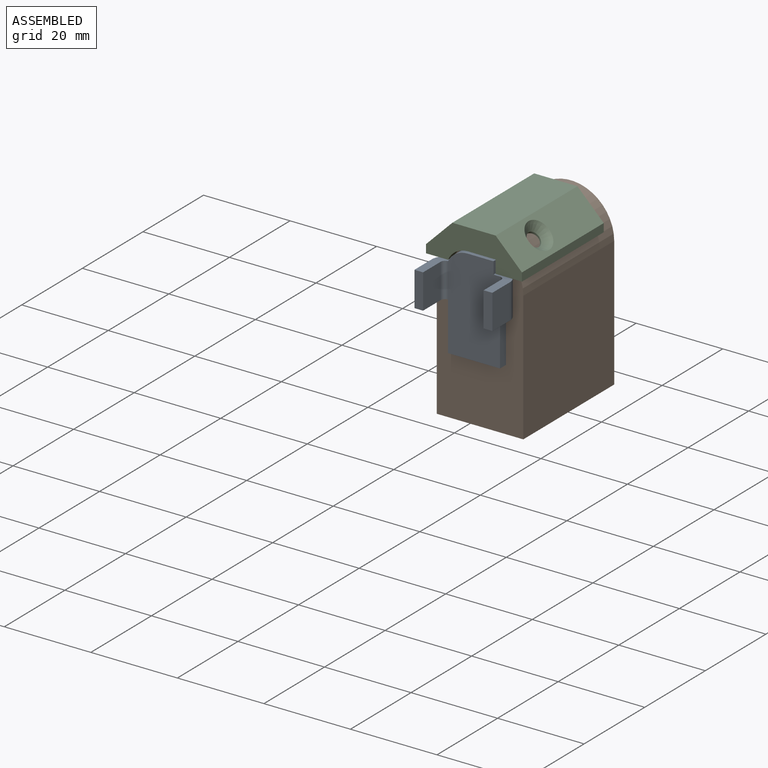
[diagram: assembled view]
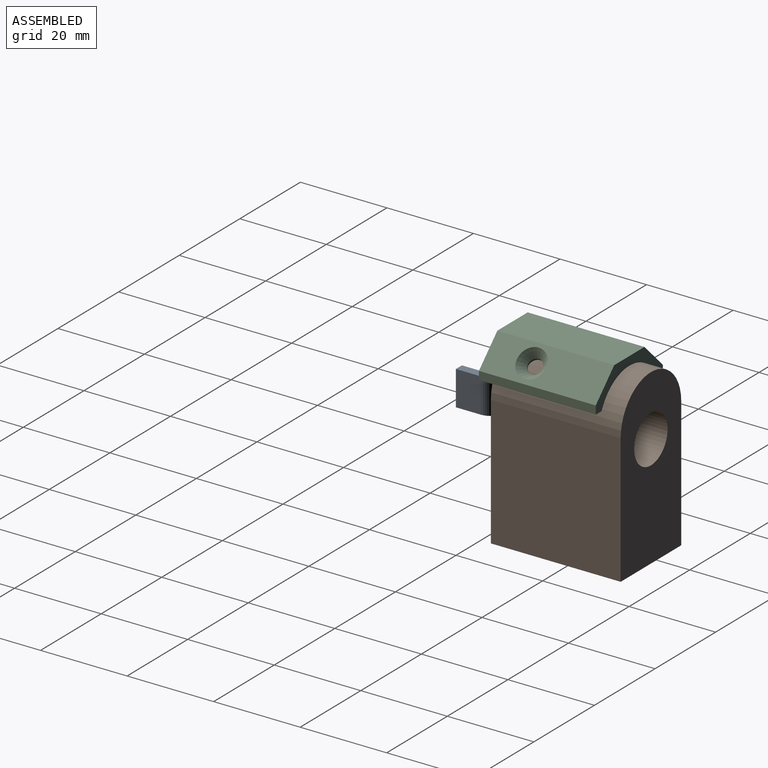
[diagram: assembled view, second angle]
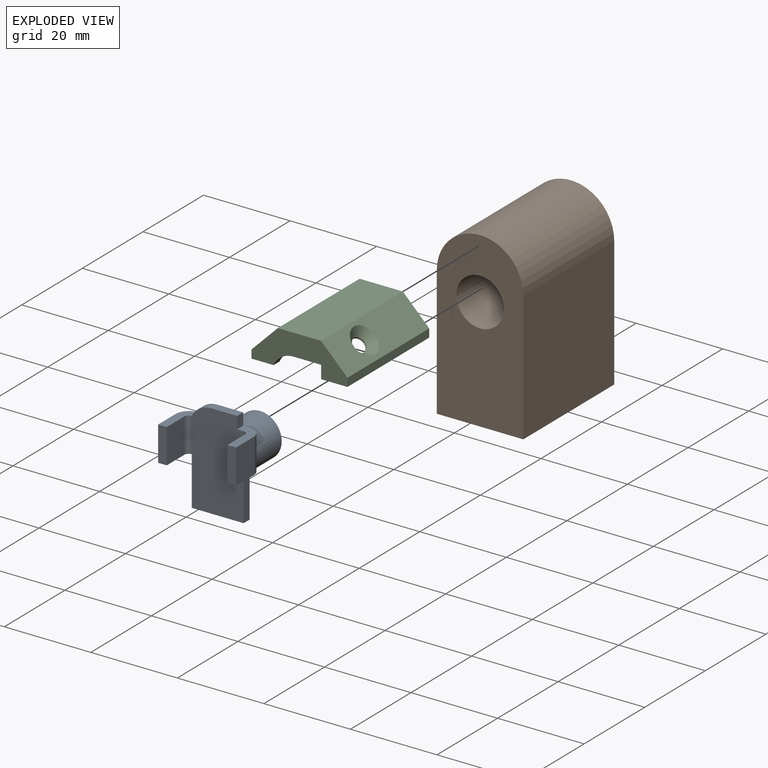
[diagram: exploded view]
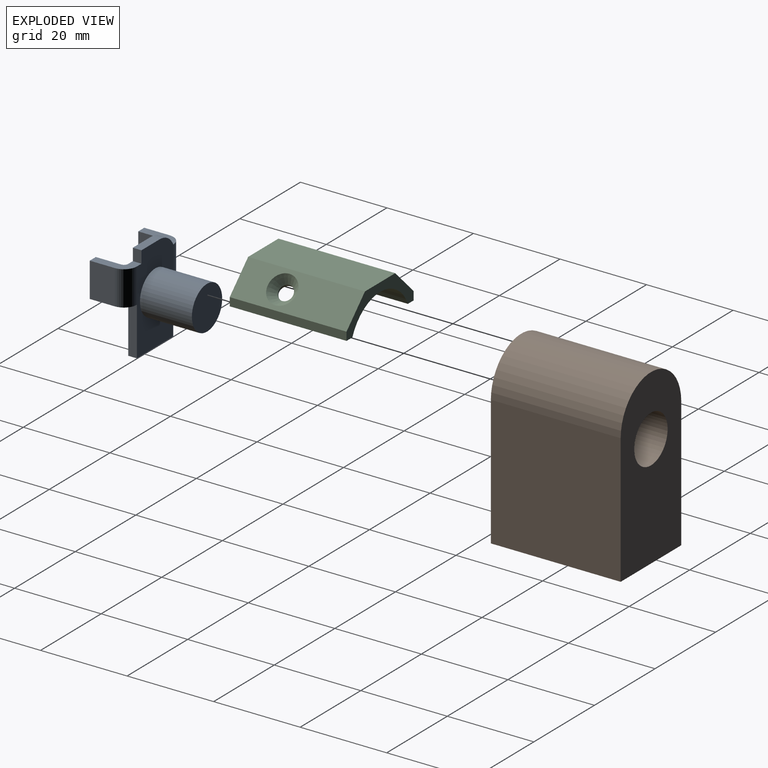
[diagram: exploded view, second angle]
ASSEMBLY  parts=3 mates=2
PART A: 24 faces, bbox 18x20.8x22 mm
  f0: plane 22x12mm, normal (0,-1,0), area 177.7mm2, adj f2,f6,f7,f10,f11,f16,f18,f19
  f1: plane 22x12mm, normal (0,1,0), area 256.2mm2, adj f2,f6,f7,f10,f11,f18,f19,f22
  f2: plane 11.2x2mm, normal (1,0,0), area 22.4mm2, adj f0,f1,f3,f11
  f3: plane 8.8x3mm, normal (0,0,-1), area 17.9mm2, adj f2,f4,f12,f13,f21,f23
  f4: plane 8x5.8mm, normal (1,0,0), area 46.4mm2, adj f3,f5,f13,f21
  f5: plane 8.8x3mm, normal (0,0,1), area 17.9mm2, adj f4,f12,f13,f19,f21,f23
  f6: plane 6.01x2mm, normal (0,0,1), area 12mm2, adj f0,f1,f18,f19
  f7: plane 8.8x4.5mm, normal (0,0,1), area 20.9mm2, adj f0,f1,f8,f14,f15,f18,f20,f22
  f8: plane 8x5.8mm, normal (-1,0,0), area 46.4mm2, adj f7,f9,f15,f20
  f9: plane 8.8x3mm, normal (0,0,-1), area 17.9mm2, adj f8,f10,f14,f15,f20,f22
  f10: plane 11.2x2mm, normal (-1,0,0), area 22.4mm2, adj f0,f1,f9,f11
  f11: plane 12x2mm, normal (0,0,-1), area 24mm2, adj f0,f1,f2,f10
  f12: plane 8x5.8mm, normal (-1,0,0), area 46.4mm2, adj f3,f5,f13,f23
  f13: plane 8x2mm, normal (0,1,0), area 16mm2, adj f3,f4,f5,f12
  f14: plane 8x5.8mm, normal (1,0,0), area 46.4mm2, adj f7,f9,f15,f22
  f15: plane 8x2mm, normal (0,1,0), area 16mm2, adj f7,f8,f9,f14
  f16: cylinder r=5mm len=12mm, axis (0,1,0), area 377mm2, adj f0,f17
  f17: plane 10x10mm, normal (0,-1,0), area 78.5mm2, adj f16
  f18: plane 2.8x2mm, normal (-1,0,0), area 5.6mm2, adj f0,f1,f6,f7
  f19: cylinder r=5mm len=4.49mm, axis (0,-1,0), area 11.2mm2, adj f0,f1,f5,f6
  f20: cylinder r=3mm len=8mm, axis (0,0,1), area 37.7mm2, adj f0,f7,f8,f9
  f21: cylinder r=3mm len=8mm, axis (0,0,-1), area 37.7mm2, adj f0,f3,f4,f5
  f22: cylinder r=1mm len=8mm, axis (0,0,1), area 12.6mm2, adj f1,f7,f9,f14
  f23: cylinder r=1mm len=8mm, axis (0,0,-1), area 12.6mm2, adj f1,f3,f5,f12
PART B: 7 faces, bbox 20x30x40 mm
  f0: cylinder r=10mm len=30mm, axis (0,1,0), area 942.5mm2, adj f1,f3,f4,f5
  f1: plane 30x30mm, normal (-1,0,0), area 900mm2, adj f0,f2,f4,f5
  f2: plane 30x20mm, normal (0,0,-1), area 600mm2, adj f1,f3,f4,f5
  f3: plane 30x30mm, normal (1,0,0), area 900mm2, adj f0,f2,f4,f5
  f4: plane 40x20mm, normal (0,-1,0), area 662mm2, adj f0,f1,f2,f3,f6
  f5: plane 40x20mm, normal (0,1,0), area 662mm2, adj f0,f1,f2,f3,f6
  f6: cylinder r=5.5mm len=30mm, axis (0,-1,0), area 1036.7mm2, adj f4,f5
PART C: 18 faces, bbox 22.2x27x8 mm
  f0: plane 27x6.08mm, normal (0,0,-1), area 60.1mm2, adj f2,f3,f4,f5,f9,f17
  f1: plane 27x6.08mm, normal (0.71,0,0.71), area 196.8mm2, adj f2,f3,f10,f13,f17
  f2: plane 22.17x8mm, normal (0,1,0), area 61.1mm2, adj f0,f1,f4,f6,f7,f10,f16,f17
  f3: plane 22.17x8mm, normal (0,-1,0), area 111.2mm2, adj f0,f1,f6,f7,f8,f9,f10,f11
  f4: cylinder r=10mm len=25mm, axis (0,-1,0), area 561.4mm2, adj f0,f2,f5,f7,f12,f14
  f5: plane 18.33x6mm, normal (0,1,0), area 50.1mm2, adj f0,f4,f7,f8,f9,f11
  f6: plane 27x6.08mm, normal (-0.71,0,0.71), area 196.8mm2, adj f2,f3,f10,f15,f16
  f7: plane 27x5.08mm, normal (0,0,-1), area 58.1mm2, adj f2,f3,f4,f5,f11,f16
  f8: plane 6.42x2mm, normal (0,0,-1), area 12.8mm2, adj f3,f5,f9,f11
  f9: plane 3x2mm, normal (-1,0,0), area 6mm2, adj f0,f3,f5,f8
  f10: plane 27x10mm, normal (0,0,1), area 270mm2, adj f1,f2,f3,f6
  f11: cylinder r=5mm len=4.58mm, axis (0,1,0), area 11.6mm2, adj f3,f5,f7,f8
  f12: cylinder r=1.7mm len=3.4mm, axis (0.71,0,0.71), area 4.9mm2, adj f4,f13
  f13: cone r=1.7mm half-angle=45deg, axis (0.71,0,0.71), area 37.3mm2, adj f1,f12
  f14: cylinder r=1.7mm len=3.4mm, axis (-0.71,0,0.71), area 4.6mm2, adj f4,f15
  f15: cone r=1.7mm half-angle=45deg, axis (-0.71,0,0.71), area 37.3mm2, adj f6,f14
  f16: plane 27x1.92mm, normal (-1,0,0), area 51.8mm2, adj f2,f3,f6,f7
  f17: plane 27x1.92mm, normal (1,0,0), area 51.8mm2, adj f0,f1,f2,f3
PLACE A rot(axis=(0,0,1),180deg) t=(-16.52,-18.5,-5.7)mm
PLACE B t=(-16.52,13.5,-1.2)mm
PLACE C t=(-16.52,-16.5,-1.2)mm
MATE fastened A.f16 <-> B.f6  axis (0,-1,0) through (-16.52,-16.5,-5.2)mm
MATE cylindrical B.f0 <-> C.f4  axis (0,-1,0) through (-16.52,-16.5,-1.2)mm
